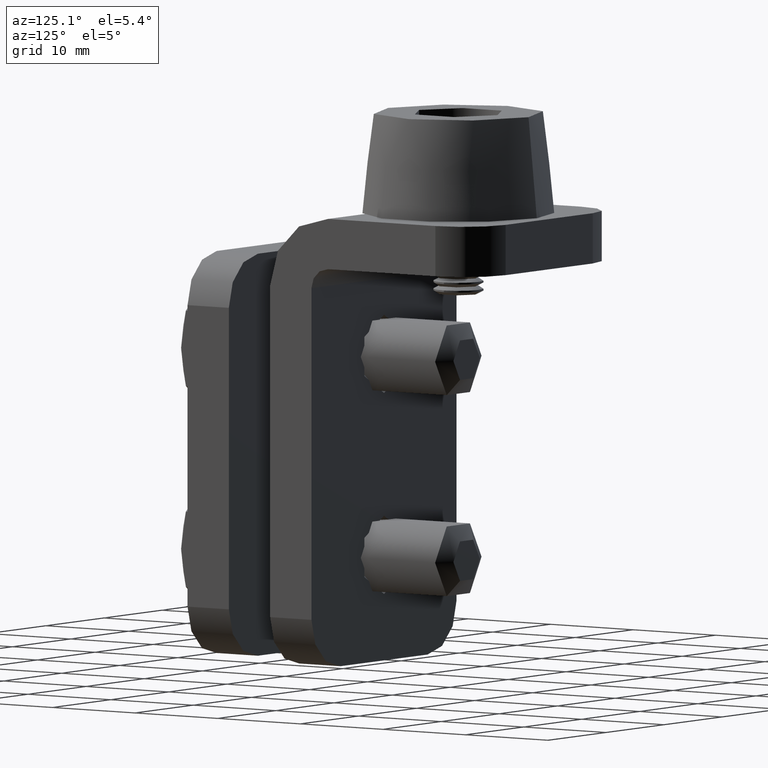
[diagram: clean part render]
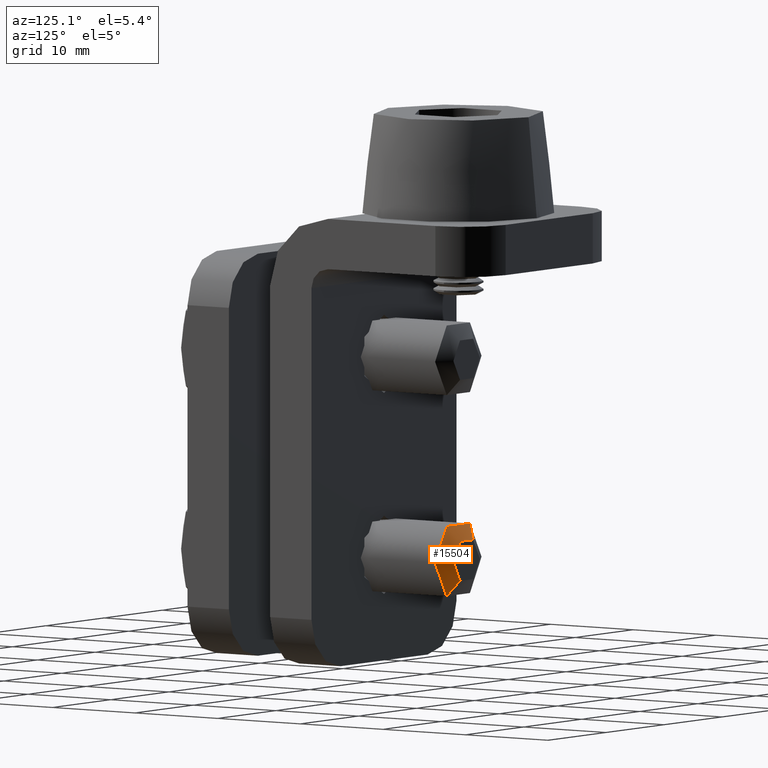
[diagram: same view with one face highlighted and labeled with its STEP entity id]
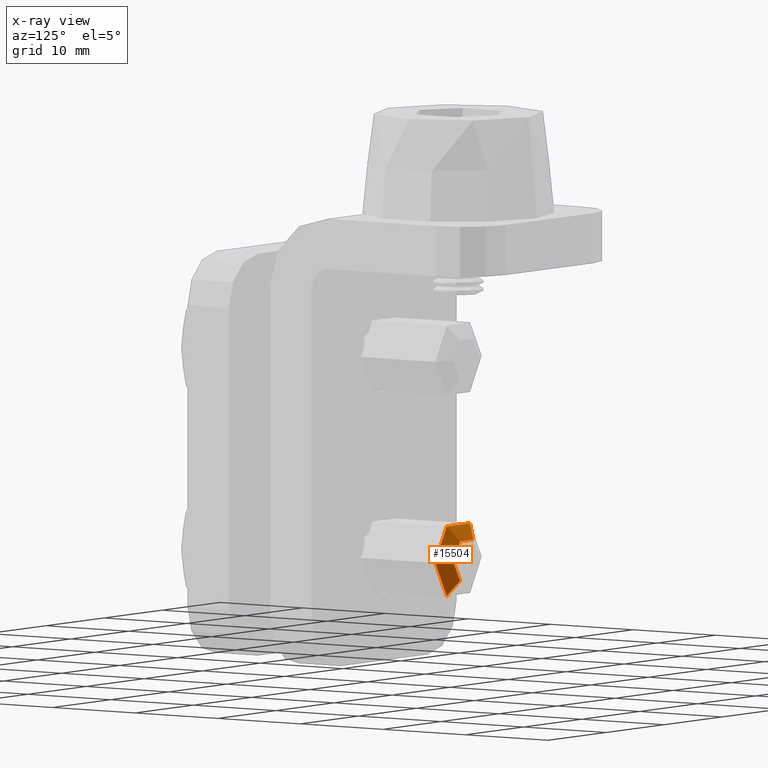
[diagram: x-ray of the same camera — body ghosted, the highlighted face saturated]
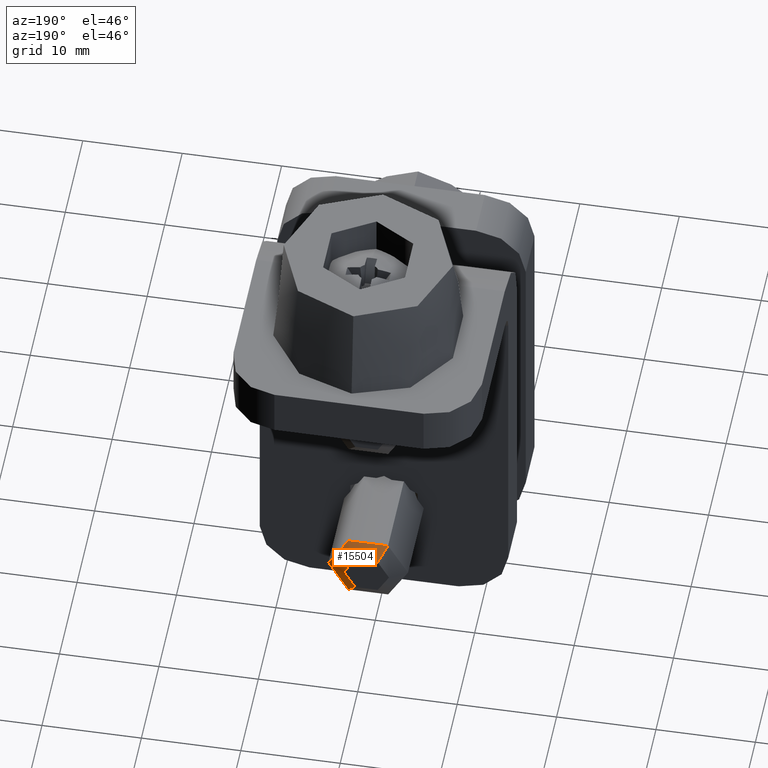
[diagram: same view with one face highlighted and labeled with its STEP entity id]
A machine part, auxiliary view. The second image highlights one B-rep face of the part: STEP entity #15504.
The next image is the same camera in x-ray: the body ghosted, the highlighted face saturated — about 0% of this face is hidden behind the body in this view.
A second angle (auxiliary view) of the same face is appended — the face is thin or edge-on in the first view.
In plain terms, the highlighted conical surface has half-angle 60 deg.
Its self-contained STEP definition (entity closure, byte-faithful):
#64 = LINE ( 'NONE', #4830, #8481 ) ;
#177 = AXIS2_PLACEMENT_3D ( 'NONE', #7210, #12731, #14154 ) ;
#346 = LINE ( 'NONE', #4288, #11663 ) ;
#449 = DIRECTION ( 'NONE',  ( 0.000000000000000000, 0.000000000000000000, 1.000000000000000000 ) ) ;
#458 = VERTEX_POINT ( 'NONE', #14911 ) ;
#815 = DIRECTION ( 'NONE',  ( 0.000000000000000000, -1.000000000000000000, 0.000000000000000000 ) ) ;
#867 = DIRECTION ( 'NONE',  ( 0.000000000000000000, 0.000000000000000000, -1.000000000000000000 ) ) ;
#1889 = CARTESIAN_POINT ( 'NONE',  ( 0.000000000000000000, -25.00000000000000000, 0.000000000000000000 ) ) ;
#2611 = CIRCLE ( 'NONE', #2809, 2.267949192431143235 ) ;
#2809 = AXIS2_PLACEMENT_3D ( 'NONE', #13582, #815, #867 ) ;
#3599 = EDGE_CURVE ( 'NONE', #12039, #11407, #2611, .T. ) ;
#4288 = CARTESIAN_POINT ( 'NONE',  ( 2.777436719139623651E-16, -25.00000000000000000, -2.267949192431143235 ) ) ;
#4532 = CARTESIAN_POINT ( 'NONE',  ( 0.000000000000000000, -25.00000000000000000, 2.267949192431125027 ) ) ;
#4830 = CARTESIAN_POINT ( 'NONE',  ( 0.000000000000000000, -25.00000000000000000, 2.267949192431143235 ) ) ;
#5674 = CARTESIAN_POINT ( 'NONE',  ( 3.838011957864507640E-16, -25.00000000000000000, -2.267949192431125027 ) ) ;
#5719 = EDGE_CURVE ( 'NONE', #11407, #458, #346, .T. ) ;
#5723 = DIRECTION ( 'NONE',  ( 1.060575238724908517E-16, 0.4999999999999978351, -0.8660254037844399289 ) ) ;
#6373 = VERTEX_POINT ( 'NONE', #15717 ) ;
#7210 = CARTESIAN_POINT ( 'NONE',  ( 0.000000000000000000, -24.00000000000000000, 0.000000000000000000 ) ) ;
#7405 = DIRECTION ( 'NONE',  ( -0.000000000000000000, 1.000000000000000000, 0.000000000000000000 ) ) ;
#7869 = EDGE_CURVE ( 'NONE', #458, #6373, #17372, .T. ) ;
#8481 = VECTOR ( 'NONE', #16090, 999.9999999999998863 ) ;
#10402 = CONICAL_SURFACE ( 'NONE', #15053, 2.267949192431143235, 1.047197551196596743 ) ;
#11407 = VERTEX_POINT ( 'NONE', #5674 ) ;
#11655 = ORIENTED_EDGE ( 'NONE', *, *, #5719, .F. ) ;
#11663 = VECTOR ( 'NONE', #5723, 999.9999999999998863 ) ;
#12039 = VERTEX_POINT ( 'NONE', #4532 ) ;
#12452 = EDGE_CURVE ( 'NONE', #12039, #6373, #64, .T. ) ;
#12731 = DIRECTION ( 'NONE',  ( -0.000000000000000000, 1.000000000000000000, -0.000000000000000000 ) ) ;
#12743 = ORIENTED_EDGE ( 'NONE', *, *, #7869, .F. ) ;
#13582 = CARTESIAN_POINT ( 'NONE',  ( 0.000000000000000000, -25.00000000000000000, 0.000000000000000000 ) ) ;
#13737 = FACE_OUTER_BOUND ( 'NONE', #15229, .T. ) ;
#14041 = ORIENTED_EDGE ( 'NONE', *, *, #3599, .F. ) ;
#14154 = DIRECTION ( 'NONE',  ( 0.000000000000000000, 0.000000000000000000, -1.000000000000000000 ) ) ;
#14911 = CARTESIAN_POINT ( 'NONE',  ( 4.898587196589412829E-16, -24.00000000000000000, -4.000000000000000000 ) ) ;
#15053 = AXIS2_PLACEMENT_3D ( 'NONE', #1889, #7405, #449 ) ;
#15229 = EDGE_LOOP ( 'NONE', ( #11655, #14041, #17143, #12743 ) ) ;
#15504 = ADVANCED_FACE ( 'NONE', ( #13737 ), #10402, .T. ) ;
#15717 = CARTESIAN_POINT ( 'NONE',  ( 0.000000000000000000, -24.00000000000000000, 4.000000000000000000 ) ) ;
#16090 = DIRECTION ( 'NONE',  ( 0.000000000000000000, 0.4999999999999978351, 0.8660254037844399289 ) ) ;
#17143 = ORIENTED_EDGE ( 'NONE', *, *, #12452, .T. ) ;
#17372 = CIRCLE ( 'NONE', #177, 4.000000000000031974 ) ;